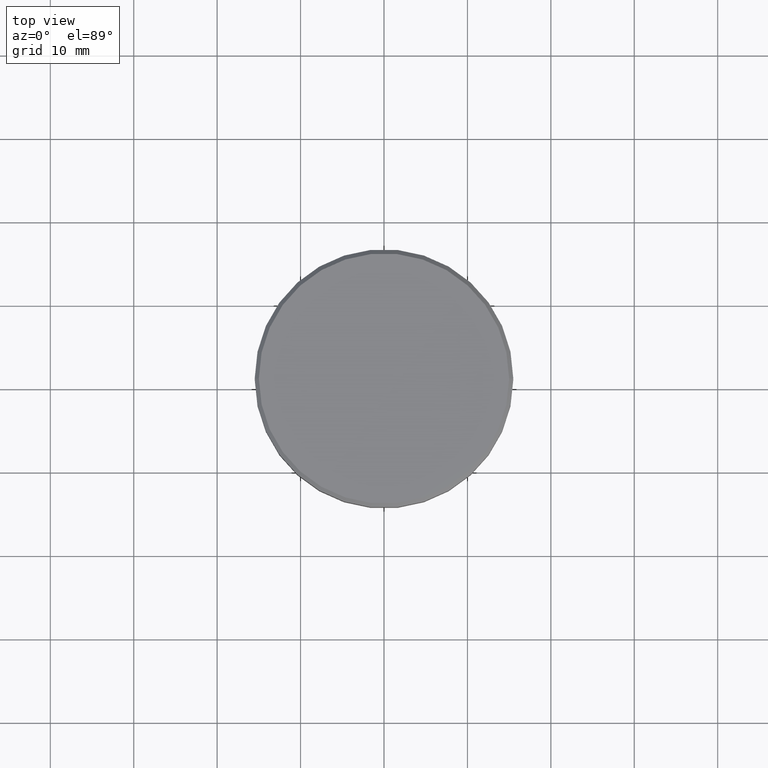
[diagram: clean part render]
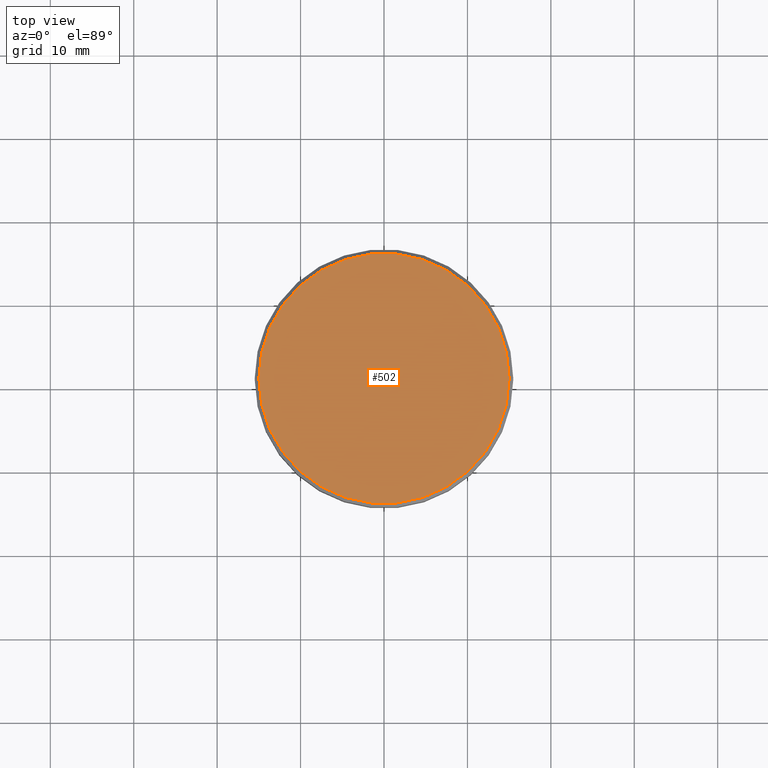
[diagram: same view with one face highlighted and labeled with its STEP entity id]
A machine part, top view. The second image highlights one B-rep face of the part: STEP entity #502.
In plain terms, the highlighted planar face has unit normal (0, -0, 1).
Its self-contained STEP definition (entity closure, byte-faithful):
#64 = VERTEX_POINT ( 'NONE', #67 ) ;
#65 = DIRECTION ( 'NONE',  ( -0.000000000000000000, -0.000000000000000000, 1.000000000000000000 ) ) ;
#67 = CARTESIAN_POINT ( 'NONE',  ( -15.00000000000001421, 0.000000000000000000, 0.000000000000000000 ) ) ;
#83 = CIRCLE ( 'NONE', #161, 15.00000000000001421 ) ;
#153 = EDGE_LOOP ( 'NONE', ( #865, #368 ) ) ;
#161 = AXIS2_PLACEMENT_3D ( 'NONE', #1086, #661, #1020 ) ;
#206 = AXIS2_PLACEMENT_3D ( 'NONE', #1059, #65, #683 ) ;
#215 = AXIS2_PLACEMENT_3D ( 'NONE', #414, #1049, #516 ) ;
#325 = VERTEX_POINT ( 'NONE', #1103 ) ;
#368 = ORIENTED_EDGE ( 'NONE', *, *, #1096, .T. ) ;
#414 = CARTESIAN_POINT ( 'NONE',  ( 0.000000000000000000, 0.000000000000000000, 0.000000000000000000 ) ) ;
#430 = CIRCLE ( 'NONE', #206, 15.00000000000001421 ) ;
#502 = ADVANCED_FACE ( 'NONE', ( #1159 ), #506, .T. ) ;
#506 = PLANE ( 'NONE',  #215 ) ;
#516 = DIRECTION ( 'NONE',  ( 1.000000000000000000, 0.000000000000000000, 0.000000000000000000 ) ) ;
#583 = EDGE_CURVE ( 'NONE', #64, #325, #430, .T. ) ;
#661 = DIRECTION ( 'NONE',  ( -0.000000000000000000, -0.000000000000000000, 1.000000000000000000 ) ) ;
#683 = DIRECTION ( 'NONE',  ( 1.000000000000000000, 0.000000000000000000, 0.000000000000000000 ) ) ;
#865 = ORIENTED_EDGE ( 'NONE', *, *, #583, .T. ) ;
#1020 = DIRECTION ( 'NONE',  ( 1.000000000000000000, 0.000000000000000000, 0.000000000000000000 ) ) ;
#1049 = DIRECTION ( 'NONE',  ( 0.000000000000000000, -0.000000000000000000, 1.000000000000000000 ) ) ;
#1059 = CARTESIAN_POINT ( 'NONE',  ( 0.000000000000000000, 0.000000000000000000, 0.000000000000000000 ) ) ;
#1086 = CARTESIAN_POINT ( 'NONE',  ( 0.000000000000000000, 0.000000000000000000, 0.000000000000000000 ) ) ;
#1096 = EDGE_CURVE ( 'NONE', #325, #64, #83, .T. ) ;
#1103 = CARTESIAN_POINT ( 'NONE',  ( 15.00000000000001421, 1.867586368699714559E-15, 0.000000000000000000 ) ) ;
#1159 = FACE_OUTER_BOUND ( 'NONE', #153, .T. ) ;